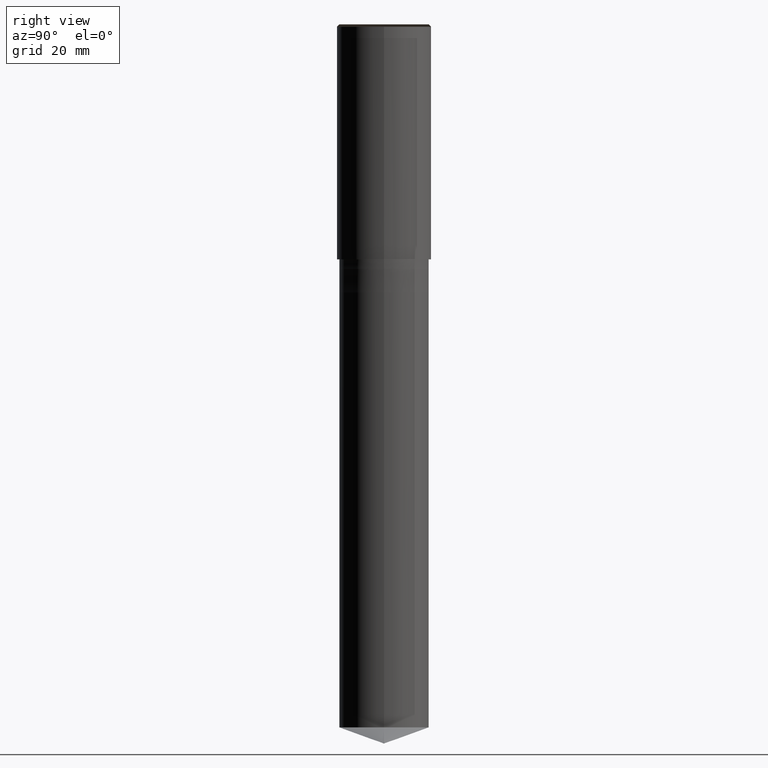
[diagram: clean part render]
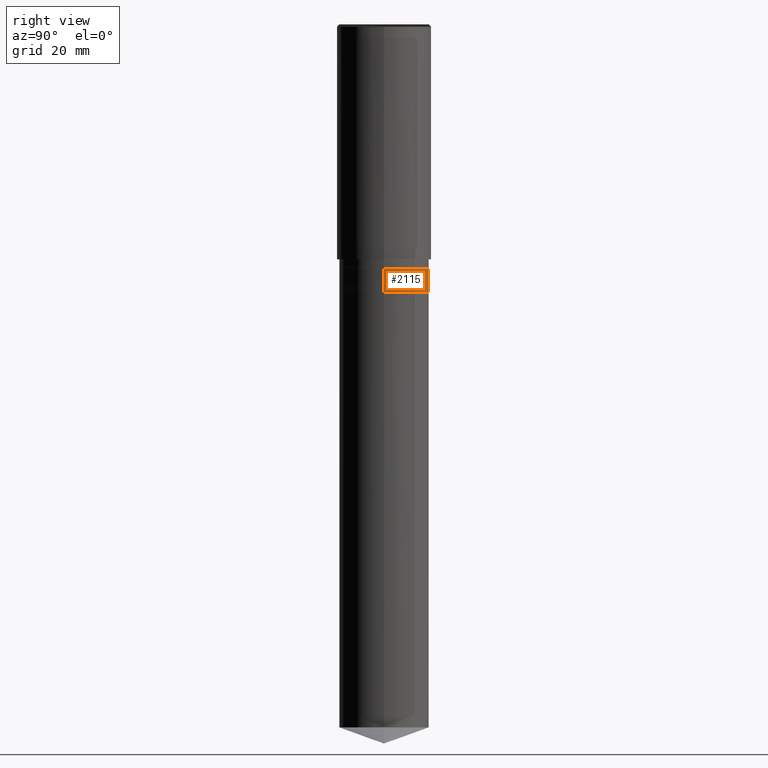
[diagram: same view with one face highlighted and labeled with its STEP entity id]
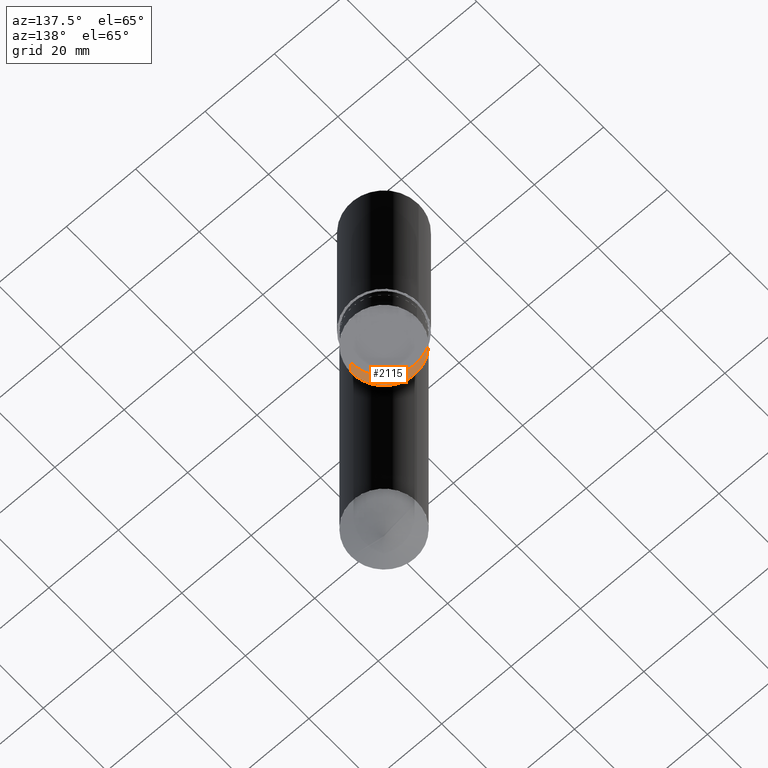
[diagram: same view with one face highlighted and labeled with its STEP entity id]
A machine part, right view. The second image highlights one B-rep face of the part: STEP entity #2115.
A second angle (auxiliary view) of the same face is appended — the face is thin or edge-on in the first view.
In plain terms, the highlighted face is a freeform B-spline surface patch.
Its self-contained STEP definition (entity closure, byte-faithful):
#1914=CARTESIAN_POINT('',(9.5,0.0,-7.0));
#1915=CARTESIAN_POINT('',(9.5,9.5,-7.0));
#1916=CARTESIAN_POINT('',(0.0,9.5,-7.0));
#1917=CARTESIAN_POINT('',(-9.5,9.5,-7.0));
#1918=CARTESIAN_POINT('',(-9.5,0.0,-7.0));
#1926=CARTESIAN_POINT('',(9.5,0.0,-2.0));
#1927=CARTESIAN_POINT('',(9.5,9.5,-2.0));
#1928=CARTESIAN_POINT('',(0.0,9.5,-2.0));
#1929=CARTESIAN_POINT('',(-9.5,9.5,-2.0));
#1930=CARTESIAN_POINT('',(-9.5,0.0,-2.0));
#2096=(
BOUNDED_SURFACE()
B_SPLINE_SURFACE(1,2,(
(#1914,#1915,#1916,#1917,#1918),
(#1926,#1927,#1928,#1929,#1930)
), .UNSPECIFIED.,.F.,.F.,.F.)
B_SPLINE_SURFACE_WITH_KNOTS((2,2),(3,2,3),(
0.0,1.0),(
0.0,0.5,1.0), .UNSPECIFIED.)
GEOMETRIC_REPRESENTATION_ITEM()
RATIONAL_B_SPLINE_SURFACE(((1.0,0.707106781187,1.0,0.707106781187,1.0),
(1.0,0.707106781187,1.0,0.707106781187,1.0)
))
REPRESENTATION_ITEM('')
SURFACE()
);
#2097=(
BOUNDED_CURVE()
B_SPLINE_CURVE(2,(#1918,#1917,#1916,#1915,#1914),.UNSPECIFIED.,.F.,.F.)
B_SPLINE_CURVE_WITH_KNOTS((3,2,3),
(0.0,0.5,1.0),.UNSPECIFIED.)
CURVE()
GEOMETRIC_REPRESENTATION_ITEM()
RATIONAL_B_SPLINE_CURVE((1.0,0.707106781187,1.0,0.707106781187,1.0))
REPRESENTATION_ITEM('')
);
#2098=(
BOUNDED_CURVE()
B_SPLINE_CURVE(1,(#1914,#1926),.UNSPECIFIED.,.F.,.F.)
B_SPLINE_CURVE_WITH_KNOTS((2,2),
(0.0,1.0),.UNSPECIFIED.)
CURVE()
GEOMETRIC_REPRESENTATION_ITEM()
RATIONAL_B_SPLINE_CURVE((1.0,1.0))
REPRESENTATION_ITEM('')
);
#2099=(
BOUNDED_CURVE()
B_SPLINE_CURVE(2,(#1926,#1927,#1928,#1929,#1930),.UNSPECIFIED.,.F.,.F.)
B_SPLINE_CURVE_WITH_KNOTS((3,2,3),
(0.0,0.5,1.0),.UNSPECIFIED.)
CURVE()
GEOMETRIC_REPRESENTATION_ITEM()
RATIONAL_B_SPLINE_CURVE((1.0,0.707106781187,1.0,0.707106781187,1.0))
REPRESENTATION_ITEM('')
);
#2100=(
BOUNDED_CURVE()
B_SPLINE_CURVE(1,(#1930,#1918),.UNSPECIFIED.,.F.,.F.)
B_SPLINE_CURVE_WITH_KNOTS((2,2),
(0.0,1.0),.UNSPECIFIED.)
CURVE()
GEOMETRIC_REPRESENTATION_ITEM()
RATIONAL_B_SPLINE_CURVE((1.0,1.0))
REPRESENTATION_ITEM('')
);
#2101=VERTEX_POINT('',#1914);
#2102=VERTEX_POINT('',#1918);
#2103=VERTEX_POINT('',#1926);
#2104=VERTEX_POINT('',#1930);
#2105=EDGE_CURVE('',#2102,#2101,#2097,.T.);
#2106=EDGE_CURVE('',#2101,#2103,#2098,.T.);
#2107=EDGE_CURVE('',#2103,#2104,#2099,.T.);
#2108=EDGE_CURVE('',#2104,#2102,#2100,.T.);
#2109=ORIENTED_EDGE('',*,*,#2105,.T.);
#2110=ORIENTED_EDGE('',*,*,#2106,.T.);
#2111=ORIENTED_EDGE('',*,*,#2107,.T.);
#2112=ORIENTED_EDGE('',*,*,#2108,.T.);
#2113=EDGE_LOOP('',(#2109,#2110,#2111,#2112));
#2114=FACE_OUTER_BOUND('',#2113,.T.);
#2115=ADVANCED_FACE('',(#2114),#2096,.T.);